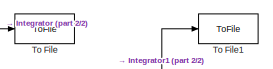
[diagram: root canvas - part 1/2, top center region]
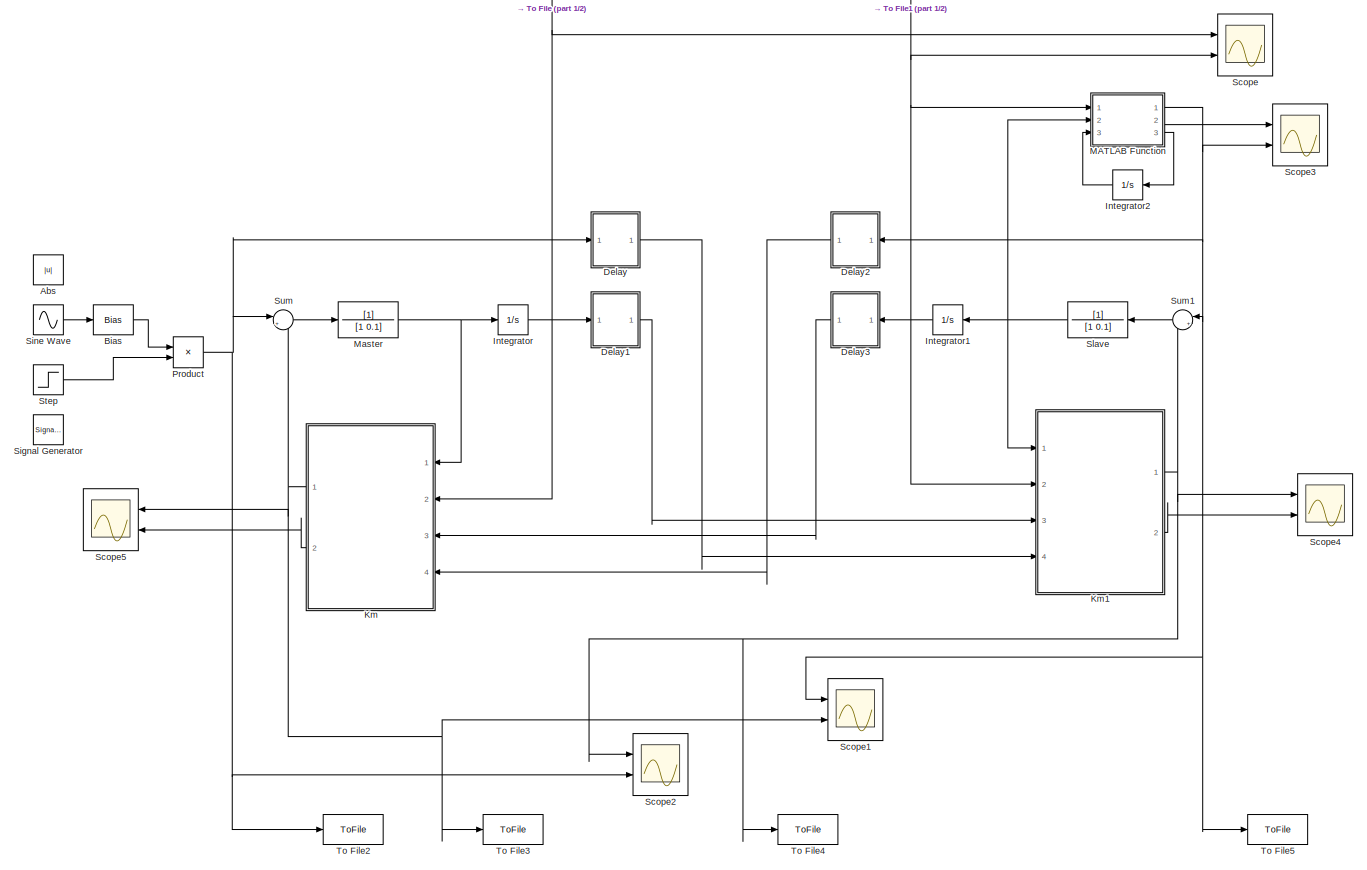
[diagram: root canvas - part 2/2, most of the canvas]
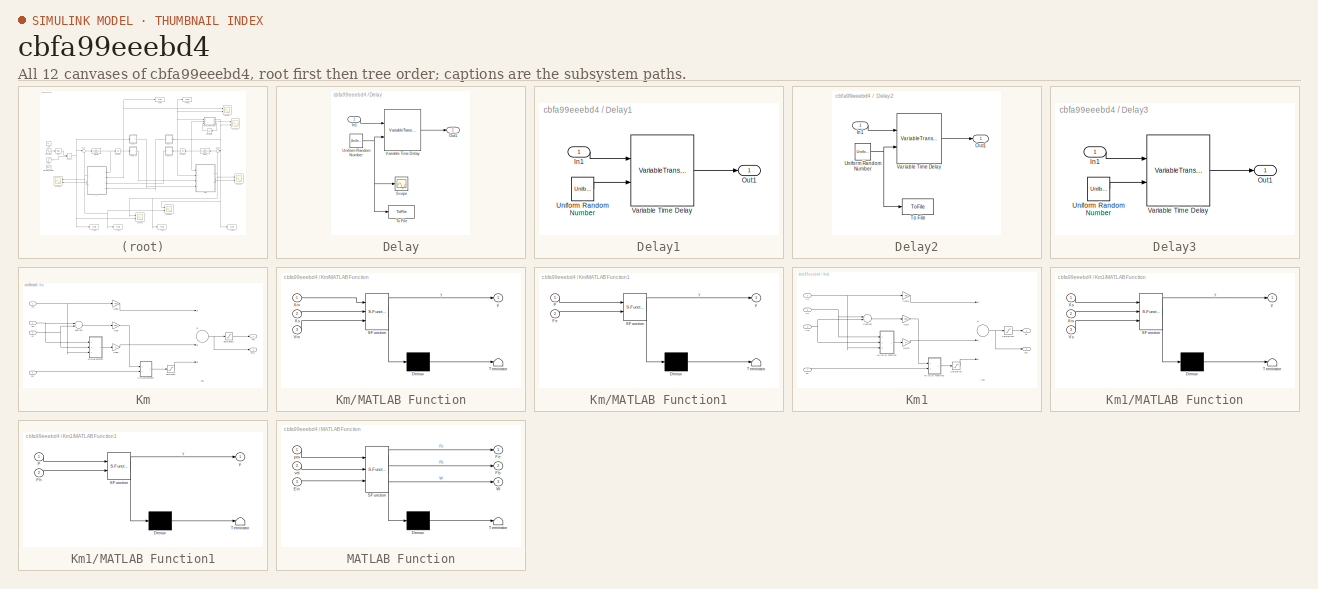
[diagram: thumbnail index - all 12 canvases of the model, root first then tree order]
MODEL slx_cbfa99eeebd4
KIND model
CONFIG AbsTol = auto
CONFIG FixedStep = Ts
CONFIG MaxStep = auto
CONFIG MinStep = auto
CONFIG RelTol = 1e-3
CONFIG SampleTimeConstraint = Unconstrained
CONFIG Solver = FixedStepAuto
CONFIG SolverMode = Auto
CONFIG SolverName = FixedStepAuto
CONFIG StartTime = 0.0
CONFIG StopTime = 10
BLOCK [Abs] Abs
  SaturateOnIntegerOverflow = off
BLOCK [Bias] Bias
  Bias = 0.1
  SaturateOnIntegerOverflow = off
BLOCK [SubSystem] Delay
  Ports = [1, 1]
  RequestExecContextInheritance = off
  Variant = off
BLOCK [Inport] Delay/In1
  IconDisplay = Port number
BLOCK [Outport] Delay/Out1
  IconDisplay = Port number
BLOCK [Scope] Delay/Scope
  Ports = [1]
  ScopeSpecificationString = Simulink.scopes.TimeScopeBlockCfg('CurrentConfiguration', extmgr.ConfigurationSet(extmgr.Configuration('Core','General UI',true),extmgr.Configuration('Core','Source UI',true),extmgr.Configuration('Sources','WiredSimulink',true,'DataLoggingVariableName','ScopeData1'),extmgr.Configuration('Visuals','Time Domain',true,'SerializedDisplays',{struct('MinYLimReal','-0.025','MaxYLimReal','0.225','YLabelRe...<+1466ch>
BLOCK [ToFile] Delay/To File
  Filename = dm.mat
  MatrixName = dm
  Ports = [1]
  SaveFormat = Timeseries
BLOCK [UniformRandomNumber] Delay/Uniform Random Number
  Maximum = Dm
  Minimum = 0
  SampleTime = Ts
BLOCK [VariableTransportDelay] Delay/Variable Time Delay
  MaximumDelay = Dm
  Ports = [2, 1]
BLOCK [SubSystem] Delay1
  Ports = [1, 1]
  RequestExecContextInheritance = off
  Variant = off
BLOCK [Inport] Delay1/In1
  IconDisplay = Port number
BLOCK [Outport] Delay1/Out1
  IconDisplay = Port number
BLOCK [UniformRandomNumber] Delay1/Uniform Random Number
  Maximum = Dm
  Minimum = 0
  SampleTime = Ts
BLOCK [VariableTransportDelay] Delay1/Variable Time Delay
  MaximumDelay = Dm
  Ports = [2, 1]
BLOCK [SubSystem] Delay2
  Ports = [1, 1]
  RequestExecContextInheritance = off
  Variant = off
BLOCK [Inport] Delay2/In1
  IconDisplay = Port number
BLOCK [Outport] Delay2/Out1
  IconDisplay = Port number
BLOCK [ToFile] Delay2/To File
  Filename = ds.mat
  MatrixName = ds
  Ports = [1]
  SaveFormat = Timeseries
BLOCK [UniformRandomNumber] Delay2/Uniform Random Number
  Maximum = Ds
  Minimum = 0
  SampleTime = Ts
BLOCK [VariableTransportDelay] Delay2/Variable Time Delay
  MaximumDelay = Ds
  Ports = [2, 1]
BLOCK [SubSystem] Delay3
  Ports = [1, 1]
  RequestExecContextInheritance = off
  Variant = off
BLOCK [Inport] Delay3/In1
  IconDisplay = Port number
BLOCK [Outport] Delay3/Out1
  IconDisplay = Port number
BLOCK [UniformRandomNumber] Delay3/Uniform Random Number
  Maximum = Ds
  Minimum = 0
  SampleTime = Ts
BLOCK [VariableTransportDelay] Delay3/Variable Time Delay
  MaximumDelay = Ds
  Ports = [2, 1]
BLOCK [Integrator] Integrator
  Ports = [1, 1]
BLOCK [Integrator] Integrator1
  Ports = [1, 1]
BLOCK [Integrator] Integrator2
  Ports = [1, 1]
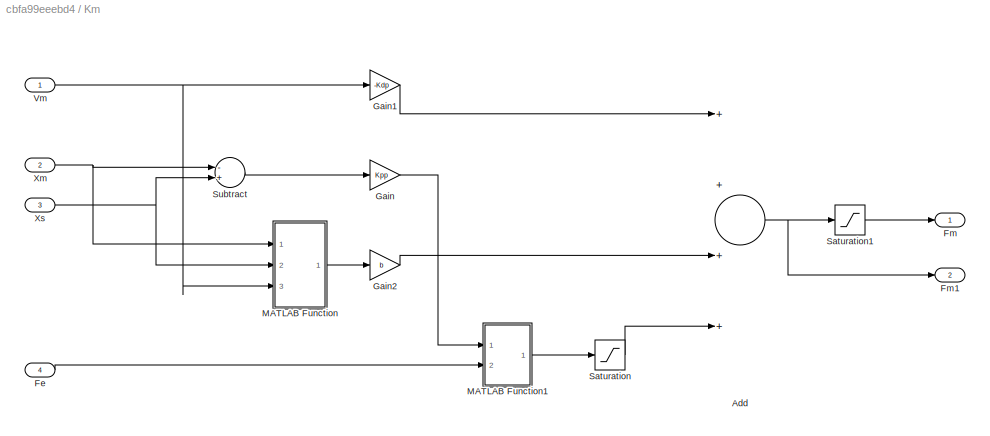
BLOCK [SubSystem] Km
  Ports = [4, 2]
  RequestExecContextInheritance = off
  Variant = off
BLOCK [Sum] Km/Add
  InputSameDT = off
  Inputs = ++++
  OutDataTypeStr = Inherit: Inherit via internal rule
  Ports = [4, 1]
  SaturateOnIntegerOverflow = off
BLOCK [Inport] Km/Fe
  IconDisplay = Port number
  Port = 4
BLOCK [Outport] Km/Fm
  IconDisplay = Port number
BLOCK [Outport] Km/Fm1
  IconDisplay = Port number
  Port = 2
BLOCK [Gain] Km/Gain
  Gain = Kpp
  OutDataTypeStr = Inherit: Inherit via internal rule
  ParamDataTypeStr = Inherit: Inherit via internal rule
  SaturateOnIntegerOverflow = off
BLOCK [Gain] Km/Gain1
  Gain = -Kdp
  OutDataTypeStr = Inherit: Inherit via internal rule
  ParamDataTypeStr = Inherit: Inherit via internal rule
  SaturateOnIntegerOverflow = off
BLOCK [Gain] Km/Gain2
  Gain = b
  OutDataTypeStr = Inherit: Inherit via internal rule
  ParamDataTypeStr = Inherit: Inherit via internal rule
  SaturateOnIntegerOverflow = off
BLOCK [SubSystem] Km/MATLAB Function
  ErrorFcn = Stateflow.Translate.translate
  PermitHierarchicalResolution = ExplicitOnly
  Ports = [3, 1]
  RequestExecContextInheritance = off
  SFBlockType = MATLAB Function
  TreatAsAtomicUnit = on
  Variant = off
BLOCK [Demux] Km/MATLAB Function/ Demux 
  Outputs = 1
  Ports = [1, 1]
BLOCK [S-Function] Km/MATLAB Function/ SFunction 
  EnableBusSupport = on
  FunctionName = sf_sfun
  PortCounts = [3 2]
  Ports = [3, 2]
  SFunctionDeploymentMode = off
  Tag = Stateflow S-Function Force_Position 1
BLOCK [Terminator] Km/MATLAB Function/ Terminator 
BLOCK [Inport] Km/MATLAB Function/Vm
  IconDisplay = Port number
  Port = 3
BLOCK [Inport] Km/MATLAB Function/Xm
  IconDisplay = Port number
BLOCK [Inport] Km/MATLAB Function/Xs
  IconDisplay = Port number
  Port = 2
BLOCK [Outport] Km/MATLAB Function/y
  IconDisplay = Port number
BLOCK [SubSystem] Km/MATLAB Function1
  ErrorFcn = Stateflow.Translate.translate
  PermitHierarchicalResolution = ExplicitOnly
  Ports = [2, 1]
  RequestExecContextInheritance = off
  SFBlockType = MATLAB Function
  TreatAsAtomicUnit = on
  Variant = off
BLOCK [Demux] Km/MATLAB Function1/ Demux 
  Outputs = 1
  Ports = [1, 1]
BLOCK [S-Function] Km/MATLAB Function1/ SFunction 
  EnableBusSupport = on
  FunctionName = sf_sfun
  PortCounts = [2 2]
  Ports = [2, 2]
  SFunctionDeploymentMode = off
  Tag = Stateflow S-Function Force_Position 4
BLOCK [Terminator] Km/MATLAB Function1/ Terminator 
BLOCK [Inport] Km/MATLAB Function1/Fe
  IconDisplay = Port number
  Port = 2
BLOCK [Inport] Km/MATLAB Function1/P
  IconDisplay = Port number
BLOCK [Outport] Km/MATLAB Function1/y
  IconDisplay = Port number
BLOCK [Saturate] Km/Saturation
  InputPortMap = u0
  LowerLimit = -Gamma
  Ports = [1, 1]
  UpperLimit = Gamma
  ZeroCross = off
BLOCK [Saturate] Km/Saturation1
  InputPortMap = u0
  LowerLimit = -S
  Ports = [1, 1]
  UpperLimit = S
  ZeroCross = off
BLOCK [Sum] Km/Subtract
  InputSameDT = off
  Inputs = -+
  OutDataTypeStr = Inherit: Inherit via internal rule
  Ports = [2, 1]
  SaturateOnIntegerOverflow = off
BLOCK [Inport] Km/Vm
  IconDisplay = Port number
BLOCK [Inport] Km/Xm
  IconDisplay = Port number
  Port = 2
BLOCK [Inport] Km/Xs
  IconDisplay = Port number
  Port = 3
BLOCK [SubSystem] Km1
  Ports = [4, 2]
  RequestExecContextInheritance = off
  Variant = off
BLOCK [Sum] Km1/Add
  InputSameDT = off
  Inputs = ++++
  OutDataTypeStr = Inherit: Inherit via internal rule
  Ports = [4, 1]
  SaturateOnIntegerOverflow = off
BLOCK [Inport] Km1/Fh
  IconDisplay = Port number
  Port = 4
BLOCK [Outport] Km1/Fs
  IconDisplay = Port number
BLOCK [Outport] Km1/Fs1
  IconDisplay = Port number
  Port = 2
BLOCK [Gain] Km1/Gain
  Gain = Kpp
  OutDataTypeStr = Inherit: Inherit via internal rule
  ParamDataTypeStr = Inherit: Inherit via internal rule
  SaturateOnIntegerOverflow = off
BLOCK [Gain] Km1/Gain1
  Gain = -Kdp
  OutDataTypeStr = Inherit: Inherit via internal rule
  ParamDataTypeStr = Inherit: Inherit via internal rule
  SaturateOnIntegerOverflow = off
BLOCK [Gain] Km1/Gain3
  Gain = b
  OutDataTypeStr = Inherit: Inherit via internal rule
  ParamDataTypeStr = Inherit: Inherit via internal rule
  SaturateOnIntegerOverflow = off
BLOCK [SubSystem] Km1/MATLAB Function
  ErrorFcn = Stateflow.Translate.translate
  PermitHierarchicalResolution = ExplicitOnly
  Ports = [3, 1]
  RequestExecContextInheritance = off
  SFBlockType = MATLAB Function
  TreatAsAtomicUnit = on
  Variant = off
BLOCK [Demux] Km1/MATLAB Function/ Demux 
  Outputs = 1
  Ports = [1, 1]
BLOCK [S-Function] Km1/MATLAB Function/ SFunction 
  EnableBusSupport = on
  FunctionName = sf_sfun
  PortCounts = [3 2]
  Ports = [3, 2]
  SFunctionDeploymentMode = off
  Tag = Stateflow S-Function Force_Position 3
BLOCK [Terminator] Km1/MATLAB Function/ Terminator 
BLOCK [Inport] Km1/MATLAB Function/Vs
  IconDisplay = Port number
  Port = 3
BLOCK [Inport] Km1/MATLAB Function/Xm
  IconDisplay = Port number
  Port = 2
BLOCK [Inport] Km1/MATLAB Function/Xs
  IconDisplay = Port number
BLOCK [Outport] Km1/MATLAB Function/y
  IconDisplay = Port number
BLOCK [SubSystem] Km1/MATLAB Function1
  ErrorFcn = Stateflow.Translate.translate
  PermitHierarchicalResolution = ExplicitOnly
  Ports = [2, 1]
  RequestExecContextInheritance = off
  SFBlockType = MATLAB Function
  TreatAsAtomicUnit = on
  Variant = off
BLOCK [Demux] Km1/MATLAB Function1/ Demux 
  Outputs = 1
  Ports = [1, 1]
BLOCK [S-Function] Km1/MATLAB Function1/ SFunction 
  EnableBusSupport = on
  FunctionName = sf_sfun
  PortCounts = [2 2]
  Ports = [2, 2]
  SFunctionDeploymentMode = off
  Tag = Stateflow S-Function Force_Position 5
BLOCK [Terminator] Km1/MATLAB Function1/ Terminator 
BLOCK [Inport] Km1/MATLAB Function1/Fh
  IconDisplay = Port number
  Port = 2
BLOCK [Inport] Km1/MATLAB Function1/P
  IconDisplay = Port number
BLOCK [Outport] Km1/MATLAB Function1/y
  IconDisplay = Port number
BLOCK [Saturate] Km1/Saturation
  InputPortMap = u0
  LowerLimit = -Gamma
  Ports = [1, 1]
  UpperLimit = Gamma
  ZeroCross = off
BLOCK [Saturate] Km1/Saturation1
  InputPortMap = u0
  LowerLimit = -S
  Ports = [1, 1]
  UpperLimit = S
  ZeroCross = off
BLOCK [Sum] Km1/Subtract
  InputSameDT = off
  Inputs = -+
  OutDataTypeStr = Inherit: Inherit via internal rule
  Ports = [2, 1]
  SaturateOnIntegerOverflow = off
BLOCK [Inport] Km1/Vs
  IconDisplay = Port number
BLOCK [Inport] Km1/Xm
  IconDisplay = Port number
  Port = 3
BLOCK [Inport] Km1/Xs
  IconDisplay = Port number
  Port = 2
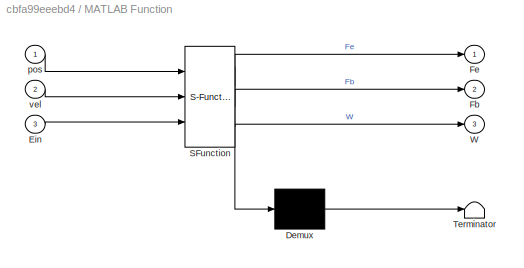
BLOCK [SubSystem] MATLAB Function
  ErrorFcn = Stateflow.Translate.translate
  PermitHierarchicalResolution = ExplicitOnly
  Ports = [3, 3]
  RequestExecContextInheritance = off
  SFBlockType = MATLAB Function
  TreatAsAtomicUnit = on
  Variant = off
BLOCK [Demux] MATLAB Function/ Demux 
  Outputs = 1
  Ports = [1, 1]
BLOCK [S-Function] MATLAB Function/ SFunction 
  EnableBusSupport = on
  FunctionName = sf_sfun
  PortCounts = [3 4]
  Ports = [3, 4]
  SFunctionDeploymentMode = off
  Tag = Stateflow S-Function Force_Position 2
BLOCK [Terminator] MATLAB Function/ Terminator 
BLOCK [Inport] MATLAB Function/Ein
  IconDisplay = Port number
  Port = 3
BLOCK [Outport] MATLAB Function/Fb
  IconDisplay = Port number
  Port = 2
BLOCK [Outport] MATLAB Function/Fe
  IconDisplay = Port number
BLOCK [Outport] MATLAB Function/W
  IconDisplay = Port number
  Port = 3
BLOCK [Inport] MATLAB Function/pos
  IconDisplay = Port number
BLOCK [Inport] MATLAB Function/vel
  IconDisplay = Port number
  Port = 2
BLOCK [TransferFcn] Master
  Denominator = [1 0.1]
BLOCK [Product] Product
  InputSameDT = off
  OutDataTypeStr = Inherit: Inherit via internal rule
  Ports = [2, 1]
  RndMeth = Floor
  SaturateOnIntegerOverflow = off
BLOCK [Scope] Scope
  NumInputPorts = 2
  Ports = [2]
  ScopeSpecificationString = Simulink.scopes.TimeScopeBlockCfg('CurrentConfiguration', extmgr.ConfigurationSet(extmgr.Configuration('Core','General UI',true),extmgr.Configuration('Core','Source UI',true),extmgr.Configuration('Sources','WiredSimulink',true),extmgr.Configuration('Visuals','Time Domain',true,'SerializedDisplays',{struct('MinYLimReal','-0.09766','MaxYLimReal','0.27489','YLabelReal','','MinYLimMag','0.00000','MaxY...<+1444ch>
BLOCK [Scope] Scope1
  NumInputPorts = 2
  Ports = [2]
  ScopeSpecificationString = Simulink.scopes.TimeScopeBlockCfg('CurrentConfiguration', extmgr.ConfigurationSet(extmgr.Configuration('Core','General UI',true),extmgr.Configuration('Core','Source UI',true),extmgr.Configuration('Sources','WiredSimulink',true,'DataLoggingVariableName','ScopeData1'),extmgr.Configuration('Visuals','Time Domain',true,'SerializedDisplays',{struct('MinYLimReal','-15.28593','MaxYLimReal','3.8659','YLab...<+1483ch>
BLOCK [Scope] Scope2
  NumInputPorts = 2
  Ports = [2]
  ScopeSpecificationString = Simulink.scopes.TimeScopeBlockCfg('CurrentConfiguration', extmgr.ConfigurationSet(extmgr.Configuration('Core','General UI',true),extmgr.Configuration('Core','Source UI',true),extmgr.Configuration('Sources','WiredSimulink',true,'DataLoggingVariableName','ScopeData1'),extmgr.Configuration('Visuals','Time Domain',true,'SerializedDisplays',{struct('MinYLimReal','-2.5','MaxYLimReal','2.5','YLabelReal',...<+1425ch>
BLOCK [Scope] Scope3
  NumInputPorts = 2
  Ports = [2]
  ScopeSpecificationString = Simulink.scopes.TimeScopeBlockCfg('CurrentConfiguration', extmgr.ConfigurationSet(extmgr.Configuration('Core','General UI',true),extmgr.Configuration('Core','Source UI',true),extmgr.Configuration('Sources','WiredSimulink',true,'DataLoggingVariableName','ScopeData1'),extmgr.Configuration('Visuals','Time Domain',true,'SerializedDisplays',{struct('MinYLimReal','-34.14542','MaxYLimReal','3.79394','YLa...<+1502ch>
BLOCK [Scope] Scope4
  NumInputPorts = 2
  Ports = [2]
  ScopeSpecificationString = Simulink.scopes.TimeScopeBlockCfg('CurrentConfiguration', extmgr.ConfigurationSet(extmgr.Configuration('Core','General UI',true),extmgr.Configuration('Core','Source UI',true),extmgr.Configuration('Sources','WiredSimulink',true,'DataLoggingVariableName','ScopeData1'),extmgr.Configuration('Visuals','Time Domain',true,'SerializedDisplays',{struct('MinYLimReal','-0.84885','MaxYLimReal','4.92144','YLab...<+1471ch>
BLOCK [Scope] Scope5
  NumInputPorts = 2
  Ports = [2]
  ScopeSpecificationString = Simulink.scopes.TimeScopeBlockCfg('CurrentConfiguration', extmgr.ConfigurationSet(extmgr.Configuration('Core','General UI',true),extmgr.Configuration('Core','Source UI',true),extmgr.Configuration('Sources','WiredSimulink',true,'DataLoggingVariableName','ScopeData2'),extmgr.Configuration('Visuals','Time Domain',true,'SerializedDisplays',{struct('MinYLimReal','-8.85317','MaxYLimReal','7.65772','YLab...<+1467ch>
BLOCK [SignalGenerator] Signal Generator
  Amplitude = -1
  Frequency = 0.05*pi
  Ports = [0, 1]
  Units = rad/sec
  WaveForm = square
BLOCK [Sin] Sine Wave
  Amplitude = 2
  Frequency = pi/2
  Ports = [0, 1]
  SampleTime = 0
BLOCK [TransferFcn] Slave
  Denominator = [1 0.1]
BLOCK [Step] Step
  After = 0
  Before = 1
  SampleTime = 0
  Time = 20
BLOCK [Sum] Sum
  IconShape = round
  InputSameDT = off
  Inputs = |++
  OutDataTypeStr = Inherit: Inherit via internal rule
  Ports = [2, 1]
  SaturateOnIntegerOverflow = off
BLOCK [Sum] Sum1
  IconShape = round
  InputSameDT = off
  Inputs = |++
  OutDataTypeStr = Inherit: Inherit via internal rule
  Ports = [2, 1]
  SaturateOnIntegerOverflow = off
BLOCK [ToFile] To File
  Filename = Qm_p4.mat
  MatrixName = Qm_p4
  Ports = [1]
  SaveFormat = Timeseries
BLOCK [ToFile] To File1
  Filename = Qs_p4.mat
  MatrixName = Qs_p4
  Ports = [1]
  SaveFormat = Timeseries
BLOCK [ToFile] To File2
  Filename = Fh_p4.mat
  MatrixName = Fh_p4
  Ports = [1]
  SaveFormat = Timeseries
BLOCK [ToFile] To File3
  Filename = Fm_p4.mat
  MatrixName = Fm_p4
  Ports = [1]
  SaveFormat = Timeseries
BLOCK [ToFile] To File4
  Filename = Fs_p4.mat
  MatrixName = Fs_p4
  Ports = [1]
  SaveFormat = Timeseries
BLOCK [ToFile] To File5
  Filename = Fe_p4.mat
  MatrixName = Fe_p4
  Ports = [1]
  SaveFormat = Timeseries
LINE Bias:1 -> Product:1
LINE Delay/In1:1 -> Delay/Variable Time Delay:1
NET Delay/Uniform Random Number:1 -> Delay/Scope:1, Delay/To File:1, Delay/Variable Time Delay:2
LINE Delay/Variable Time Delay:1 -> Delay/Out1:1
LINE Delay1/In1:1 -> Delay1/Variable Time Delay:1
LINE Delay1/Uniform Random Number:1 -> Delay1/Variable Time Delay:2
LINE Delay1/Variable Time Delay:1 -> Delay1/Out1:1
LINE Delay1:1 -> Km1:3
LINE Delay2/In1:1 -> Delay2/Variable Time Delay:1
NET Delay2/Uniform Random Number:1 -> Delay2/To File:1, Delay2/Variable Time Delay:2
LINE Delay2/Variable Time Delay:1 -> Delay2/Out1:1
LINE Delay2:1 -> Km:4
LINE Delay3/In1:1 -> Delay3/Variable Time Delay:1
LINE Delay3/Uniform Random Number:1 -> Delay3/Variable Time Delay:2
LINE Delay3/Variable Time Delay:1 -> Delay3/Out1:1
LINE Delay3:1 -> Km:3
LINE Delay:1 -> Km1:4
NET Integrator1:1 -> Delay3:1, Km1:2, MATLAB Function:1, Scope:2, To File1:1
LINE Integrator2:1 -> MATLAB Function:3
NET Integrator:1 -> Delay1:1, Km:2, Scope:1, To File:1
NET Km/Add:1 -> Km/Fm1:1, Km/Saturation1:1
LINE Km/Fe:1 -> Km/MATLAB Function1:2
LINE Km/Gain1:1 -> Km/Add:1
LINE Km/Gain2:1 -> Km/Add:3
LINE Km/Gain:1 -> Km/MATLAB Function1:1
LINE Km/MATLAB Function1:1 -> Km/Saturation:1
LINE Km/MATLAB Function:1 -> Km/Gain2:1
LINE Km/Saturation1:1 -> Km/Fm:1
LINE Km/Saturation:1 -> Km/Add:4
LINE Km/Subtract:1 -> Km/Gain:1
NET Km/Vm:1 -> Km/Gain1:1, Km/MATLAB Function:3
NET Km/Xm:1 -> Km/MATLAB Function:1, Km/Subtract:1
NET Km/Xs:1 -> Km/MATLAB Function:2, Km/Subtract:2
NET Km1/Add:1 -> Km1/Fs1:1, Km1/Saturation1:1
LINE Km1/Fh:1 -> Km1/MATLAB Function1:2
LINE Km1/Gain1:1 -> Km1/Add:1
LINE Km1/Gain3:1 -> Km1/Add:3
LINE Km1/Gain:1 -> Km1/MATLAB Function1:1
LINE Km1/MATLAB Function1:1 -> Km1/Saturation:1
LINE Km1/MATLAB Function:1 -> Km1/Gain3:1
LINE Km1/Saturation1:1 -> Km1/Fs:1
LINE Km1/Saturation:1 -> Km1/Add:4
LINE Km1/Subtract:1 -> Km1/Gain:1
NET Km1/Vs:1 -> Km1/Gain1:1, Km1/MATLAB Function:3
NET Km1/Xm:1 -> Km1/MATLAB Function:2, Km1/Subtract:2
NET Km1/Xs:1 -> Km1/MATLAB Function:1, Km1/Subtract:1
NET Km1:1 -> Scope2:1, Scope4:1, Sum1:2, To File4:1
LINE Km1:2 -> Scope4:2
NET Km:1 -> Scope1:2, Scope5:1, Sum:2, To File3:1
LINE Km:2 -> Scope5:2
NET MATLAB Function:1 -> Delay2:1, Scope1:1, Scope3:2, Sum1:1, To File5:1
LINE MATLAB Function:2 -> Scope3:1
LINE MATLAB Function:3 -> Integrator2:1
NET Master:1 -> Integrator:1, Km:1
NET Product:1 -> Delay:1, Scope2:2, Sum:1, To File2:1
LINE Sine Wave:1 -> Bias:1
NET Slave:1 -> Integrator1:1, Km1:1, MATLAB Function:2
LINE Step:1 -> Product:2
LINE Sum1:1 -> Slave:1
LINE Sum:1 -> Master:1
note: NET lines group one-source signal fan-out (src -> all destinations, sorted); 1:1 wires keep LINE
CHART Km/MATLAB Function states=1 transitions=1
  STATE_LABEL 'eML_blk_kernel()'
  STATE_LABEL 'SCRIPT:\nfunction y = fcn(Xm,Xs,Vm)\n%#codegen\nif Vm>0.01\n    y=((Xm-Xs)^2)/Vm;\nelse\n    y=0;\nend'
CHART MATLAB Function states=1 transitions=1
  STATE_LABEL 'eML_blk_kernel()'
  STATE_LABEL 'SCRIPT:\nfunction [Fe, Fb, W] = Envir(pos,vel,Ein)\n%#codegen\nkWall = 10000;\nbWall = 0;\nif pos>=0.1\n    Fk=-(pos-0.1)*kWall;\n    if Ein<=1\n        Fb=bWall*vel;\n    else\n        Fb=0;\n    end\n    Fe=Fk+Fb;\n    W=Fb*vel;\nelse\n    Fe=0;\n    Fb=0;\n    W=0;\nend'
CHART Km1/MATLAB Function states=1 transitions=1
  STATE_LABEL 'eML_blk_kernel()'
  STATE_LABEL 'SCRIPT:\nfunction y = fcn(Xs,Xm,Vs)\n%#codegen\nif Vs>0.01\n    y=((Xs-Xm)^2)/Vs;\nelse\n    y=0;\nend'
CHART Km/MATLAB Function1 states=1 transitions=1
  STATE_LABEL 'eML_blk_kernel()'
  STATE_LABEL 'SCRIPT:\nfunction y = fcn(P,Fe)\n%#codegen\nif abs(Fe)<=abs(P)\n    y=P+Fe;\nelse\n    if Fe*P>=0\n        y=2*P;\n    else\n        y=0;\n    end\nend'
CHART Km1/MATLAB Function1 states=1 transitions=1
  STATE_LABEL 'eML_blk_kernel()'
  STATE_LABEL 'SCRIPT:\nfunction y = fcn(P,Fh)\n%#codegen\nif abs(Fh)<=abs(P)\n    y=P+Fh;\nelse\n    if P*Fh>0\n        y=2*P;\n    else\n        y=0;\n    end\nend'
